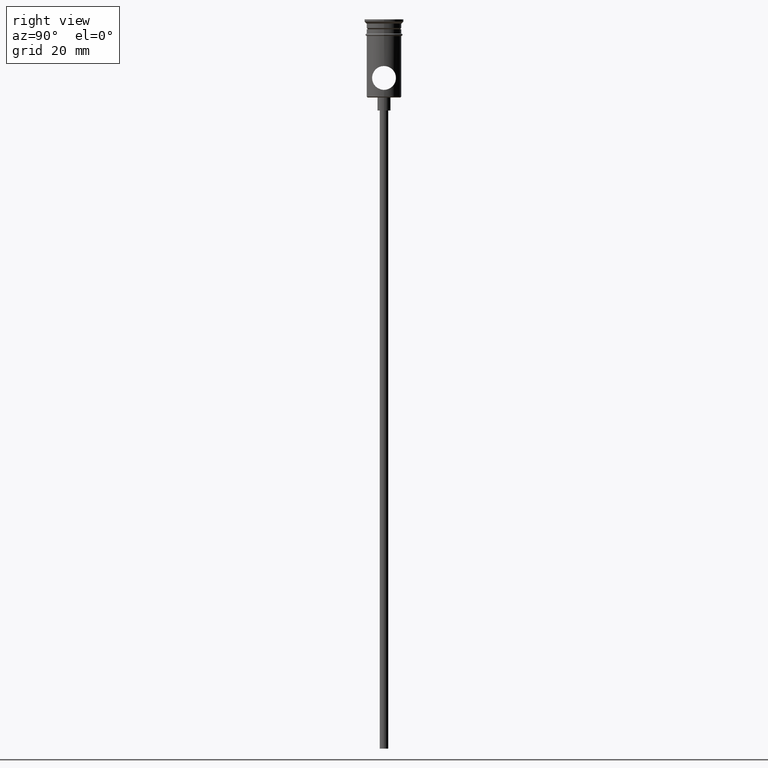
[diagram: clean part render]
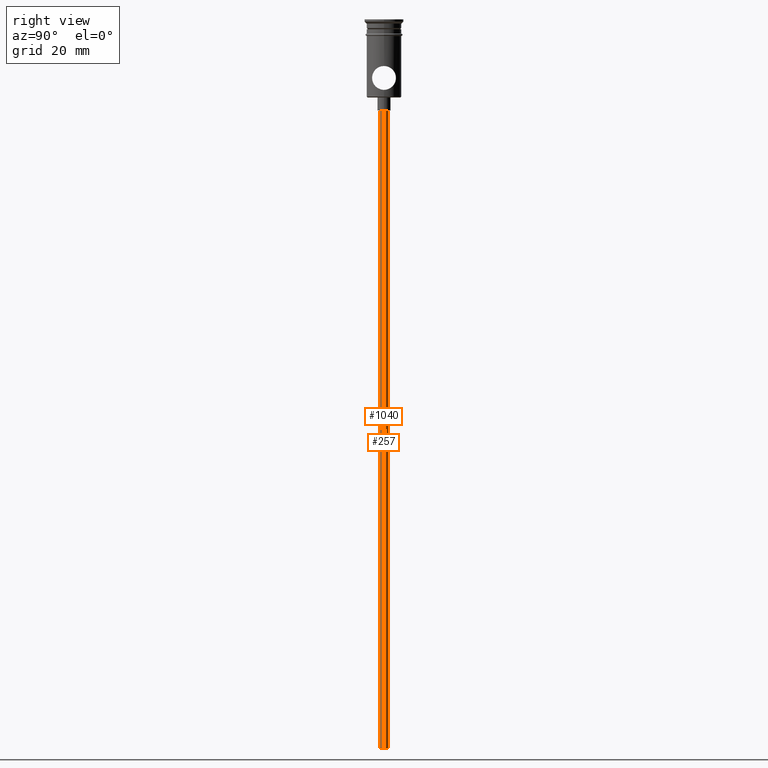
[diagram: same view with one multi-face feature highlighted, each face labeled with its STEP entity id]
A machine part, right view. The highlighted faces form ONE feature: a constant-radius fillet chain: 2 tangent blend faces with common blend radius 1 mm. The faces share edges in the B-rep.
Their STEP definitions:
[1] entity #257 (Cylinder):
#47 = DIRECTION ( 'NONE',  ( 0.000000000000000000, 0.000000000000000000, -1.000000000000000000 ) ) ;
#63 = EDGE_LOOP ( 'NONE', ( #1377, #559, #851, #748 ) ) ;
#121 = VECTOR ( 'NONE', #550, 1000.000000000000000 ) ;
#125 = CARTESIAN_POINT ( 'NONE',  ( 0.9999999999999997780, 0.000000000000000000, -167.9999999999999716 ) ) ;
#234 = CIRCLE ( 'NONE', #1045, 0.9999999999999997780 ) ;
#247 = EDGE_CURVE ( 'NONE', #1150, #511, #873, .T. ) ;
#257 = ADVANCED_FACE ( 'NONE', ( #545 ), #974, .T. ) ;
#276 = CARTESIAN_POINT ( 'NONE',  ( 0.9999999999999997780, 0.000000000000000000, -20.99999999999999645 ) ) ;
#346 = AXIS2_PLACEMENT_3D ( 'NONE', #1319, #421, #986 ) ;
#404 = LINE ( 'NONE', #1273, #662 ) ;
#421 = DIRECTION ( 'NONE',  ( -0.000000000000000000, -0.000000000000000000, 1.000000000000000000 ) ) ;
#460 = DIRECTION ( 'NONE',  ( 0.000000000000000000, 0.000000000000000000, -1.000000000000000000 ) ) ;
#478 = CARTESIAN_POINT ( 'NONE',  ( -0.9999999999999997780, 1.224646799147352961E-16, -167.9999999999999716 ) ) ;
#511 = VERTEX_POINT ( 'NONE', #276 ) ;
#521 = DIRECTION ( 'NONE',  ( -0.000000000000000000, -0.000000000000000000, 1.000000000000000000 ) ) ;
#529 = EDGE_CURVE ( 'NONE', #1094, #511, #1215, .T. ) ;
#545 = FACE_OUTER_BOUND ( 'NONE', #63, .T. ) ;
#550 = DIRECTION ( 'NONE',  ( -0.000000000000000000, -0.000000000000000000, 1.000000000000000000 ) ) ;
#559 = ORIENTED_EDGE ( 'NONE', *, *, #574, .T. ) ;
#574 = EDGE_CURVE ( 'NONE', #1275, #1094, #404, .T. ) ;
#622 = CARTESIAN_POINT ( 'NONE',  ( -0.9999999999999997780, 1.224646799147352961E-16, -20.99999999999999645 ) ) ;
#643 = AXIS2_PLACEMENT_3D ( 'NONE', #707, #47, #1146 ) ;
#662 = VECTOR ( 'NONE', #521, 1000.000000000000000 ) ;
#707 = CARTESIAN_POINT ( 'NONE',  ( 0.000000000000000000, 0.000000000000000000, -20.99999999999999645 ) ) ;
#748 = ORIENTED_EDGE ( 'NONE', *, *, #247, .F. ) ;
#827 = EDGE_CURVE ( 'NONE', #1275, #1150, #234, .T. ) ;
#851 = ORIENTED_EDGE ( 'NONE', *, *, #529, .T. ) ;
#873 = LINE ( 'NONE', #125, #121 ) ;
#887 = CARTESIAN_POINT ( 'NONE',  ( 0.9999999999999997780, 0.000000000000000000, -167.9999999999999716 ) ) ;
#902 = DIRECTION ( 'NONE',  ( -1.000000000000000000, 0.000000000000000000, 0.000000000000000000 ) ) ;
#974 = CYLINDRICAL_SURFACE ( 'NONE', #346, 0.9999999999999997780 ) ;
#986 = DIRECTION ( 'NONE',  ( 1.000000000000000000, 0.000000000000000000, 0.000000000000000000 ) ) ;
#1045 = AXIS2_PLACEMENT_3D ( 'NONE', #1099, #460, #902 ) ;
#1094 = VERTEX_POINT ( 'NONE', #622 ) ;
#1099 = CARTESIAN_POINT ( 'NONE',  ( 0.000000000000000000, 0.000000000000000000, -167.9999999999999716 ) ) ;
#1146 = DIRECTION ( 'NONE',  ( -1.000000000000000000, 0.000000000000000000, 0.000000000000000000 ) ) ;
#1150 = VERTEX_POINT ( 'NONE', #887 ) ;
#1215 = CIRCLE ( 'NONE', #643, 0.9999999999999997780 ) ;
#1273 = CARTESIAN_POINT ( 'NONE',  ( -0.9999999999999997780, 1.224646799147352961E-16, -167.9999999999999716 ) ) ;
#1275 = VERTEX_POINT ( 'NONE', #478 ) ;
#1319 = CARTESIAN_POINT ( 'NONE',  ( 0.000000000000000000, 0.000000000000000000, -167.9999999999999716 ) ) ;
#1377 = ORIENTED_EDGE ( 'NONE', *, *, #827, .F. ) ;
[2] entity #1040 (Cylinder):
#6 = AXIS2_PLACEMENT_3D ( 'NONE', #1262, #822, #287 ) ;
#83 = DIRECTION ( 'NONE',  ( -0.000000000000000000, -0.000000000000000000, 1.000000000000000000 ) ) ;
#98 = ORIENTED_EDGE ( 'NONE', *, *, #1158, .T. ) ;
#121 = VECTOR ( 'NONE', #550, 1000.000000000000000 ) ;
#125 = CARTESIAN_POINT ( 'NONE',  ( 0.9999999999999997780, 0.000000000000000000, -167.9999999999999716 ) ) ;
#247 = EDGE_CURVE ( 'NONE', #1150, #511, #873, .T. ) ;
#276 = CARTESIAN_POINT ( 'NONE',  ( 0.9999999999999997780, 0.000000000000000000, -20.99999999999999645 ) ) ;
#287 = DIRECTION ( 'NONE',  ( -1.000000000000000000, 0.000000000000000000, 0.000000000000000000 ) ) ;
#300 = CIRCLE ( 'NONE', #6, 0.9999999999999997780 ) ;
#302 = FACE_OUTER_BOUND ( 'NONE', #385, .T. ) ;
#358 = DIRECTION ( 'NONE',  ( -1.000000000000000000, 0.000000000000000000, 0.000000000000000000 ) ) ;
#371 = AXIS2_PLACEMENT_3D ( 'NONE', #1212, #1109, #358 ) ;
#385 = EDGE_LOOP ( 'NONE', ( #775, #956, #1387, #98 ) ) ;
#404 = LINE ( 'NONE', #1273, #662 ) ;
#416 = CYLINDRICAL_SURFACE ( 'NONE', #599, 0.9999999999999997780 ) ;
#466 = EDGE_CURVE ( 'NONE', #1150, #1275, #300, .T. ) ;
#478 = CARTESIAN_POINT ( 'NONE',  ( -0.9999999999999997780, 1.224646799147352961E-16, -167.9999999999999716 ) ) ;
#511 = VERTEX_POINT ( 'NONE', #276 ) ;
#521 = DIRECTION ( 'NONE',  ( -0.000000000000000000, -0.000000000000000000, 1.000000000000000000 ) ) ;
#550 = DIRECTION ( 'NONE',  ( -0.000000000000000000, -0.000000000000000000, 1.000000000000000000 ) ) ;
#574 = EDGE_CURVE ( 'NONE', #1275, #1094, #404, .T. ) ;
#599 = AXIS2_PLACEMENT_3D ( 'NONE', #1163, #83, #1270 ) ;
#622 = CARTESIAN_POINT ( 'NONE',  ( -0.9999999999999997780, 1.224646799147352961E-16, -20.99999999999999645 ) ) ;
#662 = VECTOR ( 'NONE', #521, 1000.000000000000000 ) ;
#775 = ORIENTED_EDGE ( 'NONE', *, *, #574, .F. ) ;
#822 = DIRECTION ( 'NONE',  ( 0.000000000000000000, 0.000000000000000000, -1.000000000000000000 ) ) ;
#834 = CIRCLE ( 'NONE', #371, 0.9999999999999997780 ) ;
#873 = LINE ( 'NONE', #125, #121 ) ;
#887 = CARTESIAN_POINT ( 'NONE',  ( 0.9999999999999997780, 0.000000000000000000, -167.9999999999999716 ) ) ;
#956 = ORIENTED_EDGE ( 'NONE', *, *, #466, .F. ) ;
#1040 = ADVANCED_FACE ( 'NONE', ( #302 ), #416, .T. ) ;
#1094 = VERTEX_POINT ( 'NONE', #622 ) ;
#1109 = DIRECTION ( 'NONE',  ( 0.000000000000000000, 0.000000000000000000, -1.000000000000000000 ) ) ;
#1150 = VERTEX_POINT ( 'NONE', #887 ) ;
#1158 = EDGE_CURVE ( 'NONE', #511, #1094, #834, .T. ) ;
#1163 = CARTESIAN_POINT ( 'NONE',  ( 0.000000000000000000, 0.000000000000000000, -167.9999999999999716 ) ) ;
#1212 = CARTESIAN_POINT ( 'NONE',  ( 0.000000000000000000, 0.000000000000000000, -20.99999999999999645 ) ) ;
#1262 = CARTESIAN_POINT ( 'NONE',  ( 0.000000000000000000, 0.000000000000000000, -167.9999999999999716 ) ) ;
#1270 = DIRECTION ( 'NONE',  ( 1.000000000000000000, 0.000000000000000000, 0.000000000000000000 ) ) ;
#1273 = CARTESIAN_POINT ( 'NONE',  ( -0.9999999999999997780, 1.224646799147352961E-16, -167.9999999999999716 ) ) ;
#1275 = VERTEX_POINT ( 'NONE', #478 ) ;
#1387 = ORIENTED_EDGE ( 'NONE', *, *, #247, .T. ) ;